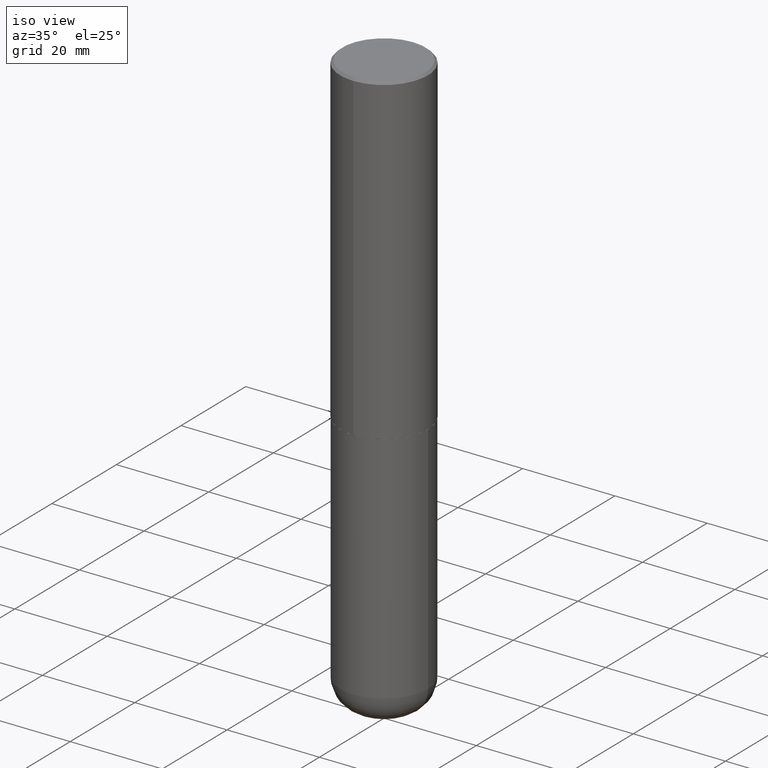
[diagram: clean part render]
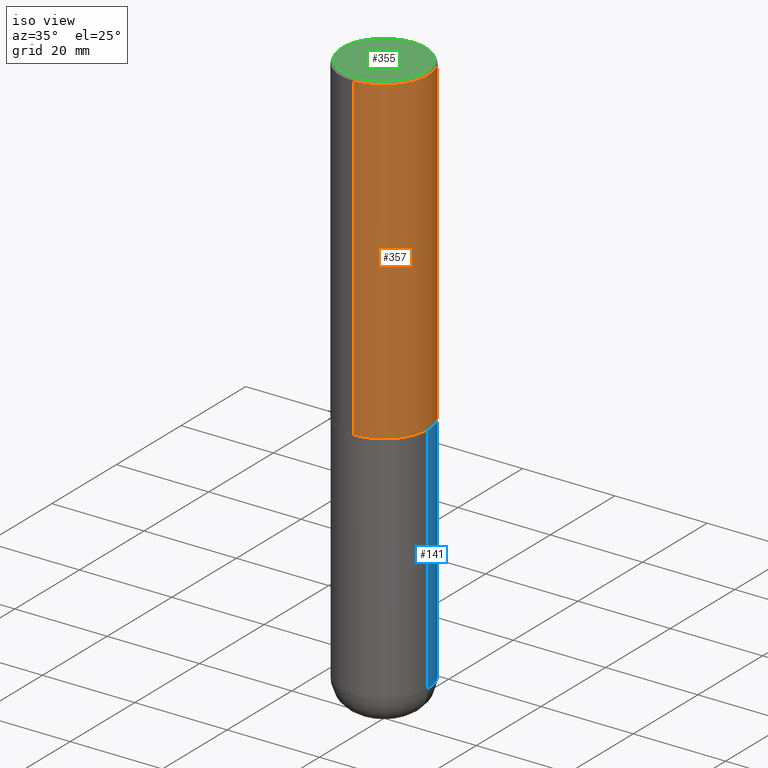
[diagram: same view with three faces highlighted in distinct colors, each labeled with its STEP entity id]
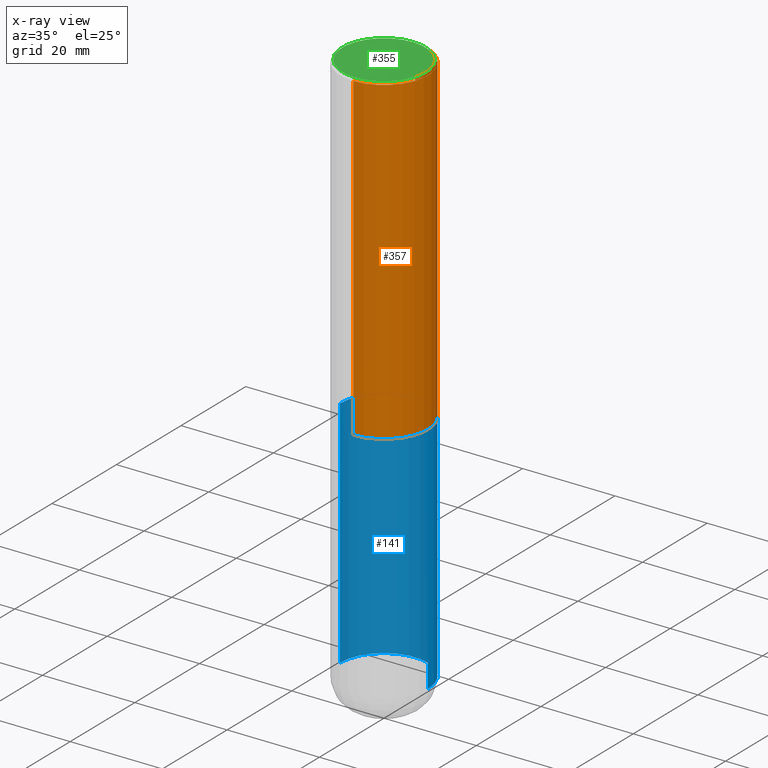
[diagram: x-ray of the same camera — body ghosted, the three highlighted faces saturated]
A machine part, iso view with three faces highlighted in distinct colors.
The next image is the same camera in x-ray (body ghosted, the three faces saturated) — at least one of them is partly hidden behind the body in this view.
Their STEP definitions:

[orange] entity #357 — the highlighted cylindrical surface (partial cylindrical patch) has radius 9.525 mm, axis along (-0, 0, 1).
#33 = LINE ( 'NONE', #178, #373 ) ;
#35 = DIRECTION ( 'NONE',  ( -6.982962677686265922E-15, -1.000000000000000000, 3.494488891895536035E-15 ) ) ;
#44 = EDGE_CURVE ( 'NONE', #65, #246, #60, .T. ) ;
#60 = LINE ( 'NONE', #135, #207 ) ;
#65 = VERTEX_POINT ( 'NONE', #396 ) ;
#66 = CIRCLE ( 'NONE', #336, 0.3750000000000003886 ) ;
#72 = ORIENTED_EDGE ( 'NONE', *, *, #195, .F. ) ;
#77 = CARTESIAN_POINT ( 'NONE',  ( 6.724165036897648492E-29, -9.595832025636787455E-15, -2.749000000000000110 ) ) ;
#81 = EDGE_CURVE ( 'NONE', #301, #114, #33, .T. ) ;
#114 = VERTEX_POINT ( 'NONE', #235 ) ;
#135 = CARTESIAN_POINT ( 'NONE',  ( -2.618611004132351594E-15, -0.3750000000000002220, 1.308998548422625521E-15 ) ) ;
#139 = DIRECTION ( 'NONE',  ( -2.446040391741596606E-29, 3.490662795793665557E-15, 1.000000000000000000 ) ) ;
#144 = CARTESIAN_POINT ( 'NONE',  ( 2.664535259100411196E-15, 0.3749999999999907296, -2.749000000000000998 ) ) ;
#151 = ORIENTED_EDGE ( 'NONE', *, *, #220, .T. ) ;
#154 = ORIENTED_EDGE ( 'NONE', *, *, #44, .F. ) ;
#155 = AXIS2_PLACEMENT_3D ( 'NONE', #255, #196, #245 ) ;
#178 = CARTESIAN_POINT ( 'NONE',  ( 2.664535259100376880E-15, 0.3750000000000002220, -1.308998548422625521E-15 ) ) ;
#195 = EDGE_CURVE ( 'NONE', #246, #114, #382, .T. ) ;
#196 = DIRECTION ( 'NONE',  ( -2.446040391741596606E-29, 3.490662795793665557E-15, 1.000000000000000000 ) ) ;
#207 = VECTOR ( 'NONE', #139, 39.37007874015748143 ) ;
#210 = DIRECTION ( 'NONE',  ( -6.982962677686265922E-15, -1.000000000000000000, 2.913971193241877611E-15 ) ) ;
#220 = EDGE_CURVE ( 'NONE', #65, #301, #66, .T. ) ;
#235 = CARTESIAN_POINT ( 'NONE',  ( 2.618611004132350411E-15, 0.3749999999999999445, -0.02000000000000139513 ) ) ;
#242 = AXIS2_PLACEMENT_3D ( 'NONE', #366, #264, #35 ) ;
#245 = DIRECTION ( 'NONE',  ( -6.982962677686266711E-15, -1.000000000000000000, 3.490662795793665951E-15 ) ) ;
#246 = VERTEX_POINT ( 'NONE', #253 ) ;
#253 = CARTESIAN_POINT ( 'NONE',  ( -2.572686749164323547E-15, -0.3750000000000001110, -0.01999999999999877570 ) ) ;
#255 = CARTESIAN_POINT ( 'NONE',  ( 0.000000000000000000, 0.000000000000000000, 0.000000000000000000 ) ) ;
#264 = DIRECTION ( 'NONE',  ( -2.446040391741596606E-29, 3.490662795793665557E-15, 1.000000000000000000 ) ) ;
#275 = ORIENTED_EDGE ( 'NONE', *, *, #81, .T. ) ;
#293 = DIRECTION ( 'NONE',  ( -2.446040391741596606E-29, 3.490662795793665557E-15, 1.000000000000000000 ) ) ;
#301 = VERTEX_POINT ( 'NONE', #144 ) ;
#318 = FACE_OUTER_BOUND ( 'NONE', #359, .T. ) ;
#336 = AXIS2_PLACEMENT_3D ( 'NONE', #77, #401, #210 ) ;
#357 = ADVANCED_FACE ( 'NONE', ( #318 ), #393, .T. ) ;
#359 = EDGE_LOOP ( 'NONE', ( #151, #275, #72, #154 ) ) ;
#366 = CARTESIAN_POINT ( 'NONE',  ( 4.892080783483214581E-31, -6.981325591587361238E-17, -0.02000000000000008715 ) ) ;
#373 = VECTOR ( 'NONE', #293, 39.37007874015748143 ) ;
#382 = CIRCLE ( 'NONE', #242, 0.3750000000000000555 ) ;
#393 = CYLINDRICAL_SURFACE ( 'NONE', #155, 0.3750000000000002220 ) ;
#396 = CARTESIAN_POINT ( 'NONE',  ( -2.618611004132284935E-15, -0.3750000000000099920, -2.748999999999999222 ) ) ;
#401 = DIRECTION ( 'NONE',  ( -2.446040391741596606E-29, 3.490662795793665557E-15, 1.000000000000000000 ) ) ;

[blue] entity #141 — the highlighted cylindrical surface (partial cylindrical patch) has radius 9.525 mm, axis along (-0, 0, 1).
#1 = LINE ( 'NONE', #71, #305 ) ;
#2 = DIRECTION ( 'NONE',  ( -2.445468806185136877E-29, 3.491481338843145188E-15, 1.000000000000000000 ) ) ;
#3 = CIRCLE ( 'NONE', #383, 0.3750000000000000555 ) ;
#8 = VECTOR ( 'NONE', #2, 39.37007874015748143 ) ;
#15 = ORIENTED_EDGE ( 'NONE', *, *, #281, .T. ) ;
#34 = ORIENTED_EDGE ( 'NONE', *, *, #49, .F. ) ;
#41 = CYLINDRICAL_SURFACE ( 'NONE', #150, 0.3749999999999999445 ) ;
#42 = CARTESIAN_POINT ( 'NONE',  ( 1.161597682937940108E-28, -1.658453635950494339E-14, -4.750000000000000000 ) ) ;
#49 = EDGE_CURVE ( 'NONE', #328, #334, #250, .T. ) ;
#56 = CARTESIAN_POINT ( 'NONE',  ( 0.3750000000000002220, -1.920314736363729341E-14, -4.750000000000000000 ) ) ;
#71 = CARTESIAN_POINT ( 'NONE',  ( -0.3749999999999999445, 2.664535259100375303E-15, -1.844600658845589318E-29 ) ) ;
#84 = FACE_OUTER_BOUND ( 'NONE', #326, .T. ) ;
#85 = CIRCLE ( 'NONE', #324, 0.3749999999999999445 ) ;
#140 = DIRECTION ( 'NONE',  ( -2.445468806185136877E-29, 3.491481338843145188E-15, 1.000000000000000000 ) ) ;
#141 = ADVANCED_FACE ( 'NONE', ( #84 ), #41, .T. ) ;
#150 = AXIS2_PLACEMENT_3D ( 'NONE', #335, #282, #152 ) ;
#152 = DIRECTION ( 'NONE',  ( 1.000000000000000000, -6.982962677686266711E-15, 4.876176775795935793E-29 ) ) ;
#188 = EDGE_CURVE ( 'NONE', #328, #364, #85, .T. ) ;
#215 = DIRECTION ( 'NONE',  ( 1.000000000000000000, -6.982962677686266711E-15, 0.000000000000000000 ) ) ;
#222 = CARTESIAN_POINT ( 'NONE',  ( 0.3750000000000000555, -1.222018468595100145E-14, -2.750000000000000000 ) ) ;
#250 = LINE ( 'NONE', #385, #8 ) ;
#254 = DIRECTION ( 'NONE',  ( -2.445468806185136597E-29, 3.491481338843145583E-15, 1.000000000000000000 ) ) ;
#277 = ORIENTED_EDGE ( 'NONE', *, *, #188, .T. ) ;
#281 = EDGE_CURVE ( 'NONE', #364, #308, #1, .T. ) ;
#282 = DIRECTION ( 'NONE',  ( -2.445468806185136597E-29, 3.491481338843145583E-15, 1.000000000000000000 ) ) ;
#286 = CARTESIAN_POINT ( 'NONE',  ( -0.3750000000000002220, -1.392000110040456296E-14, -4.750000000000000000 ) ) ;
#298 = DIRECTION ( 'NONE',  ( 1.000000000000000000, -6.982962677686269077E-15, 0.000000000000000000 ) ) ;
#305 = VECTOR ( 'NONE', #140, 39.37007874015748143 ) ;
#308 = VERTEX_POINT ( 'NONE', #408 ) ;
#324 = AXIS2_PLACEMENT_3D ( 'NONE', #42, #254, #298 ) ;
#326 = EDGE_LOOP ( 'NONE', ( #277, #15, #412, #34 ) ) ;
#328 = VERTEX_POINT ( 'NONE', #56 ) ;
#334 = VERTEX_POINT ( 'NONE', #222 ) ;
#335 = CARTESIAN_POINT ( 'NONE',  ( 0.000000000000000000, 0.000000000000000000, 0.000000000000000000 ) ) ;
#364 = VERTEX_POINT ( 'NONE', #286 ) ;
#383 = AXIS2_PLACEMENT_3D ( 'NONE', #414, #410, #215 ) ;
#385 = CARTESIAN_POINT ( 'NONE',  ( 0.3749999999999999445, -2.618611004132349622E-15, 1.828566290923475642E-29 ) ) ;
#387 = EDGE_CURVE ( 'NONE', #334, #308, #3, .T. ) ;
#408 = CARTESIAN_POINT ( 'NONE',  ( -0.3750000000000000555, -1.042851976156142014E-14, -2.750000000000000000 ) ) ;
#410 = DIRECTION ( 'NONE',  ( -2.445468806185136597E-29, 3.491481338843145583E-15, 1.000000000000000000 ) ) ;
#412 = ORIENTED_EDGE ( 'NONE', *, *, #387, .F. ) ;
#414 = CARTESIAN_POINT ( 'NONE',  ( 6.725039217009124520E-29, -9.601573681818649859E-15, -2.750000000000000000 ) ) ;

[green] entity #355 — the highlighted planar face has unit normal (0, -0, -1).
#7 = EDGE_CURVE ( 'NONE', #157, #76, #164, .T. ) ;
#9 = CARTESIAN_POINT ( 'NONE',  ( -2.504081769186608216E-15, -0.3549999999999999822, 1.285848347115290366E-15 ) ) ;
#21 = CARTESIAN_POINT ( 'NONE',  ( 2.478951750578624209E-15, 0.3549999999999999822, -1.215853765202481601E-15 ) ) ;
#22 = DIRECTION ( 'NONE',  ( 6.982962677686265922E-15, 1.000000000000000000, -3.490662795793665557E-15 ) ) ;
#76 = VERTEX_POINT ( 'NONE', #131 ) ;
#91 = PLANE ( 'NONE',  #354 ) ;
#121 = ORIENTED_EDGE ( 'NONE', *, *, #7, .T. ) ;
#124 = CARTESIAN_POINT ( 'NONE',  ( -1.141397163745304909E-45, 1.628849886601155835E-31, 4.666305460853910467E-17 ) ) ;
#131 = CARTESIAN_POINT ( 'NONE',  ( 2.548781377355487113E-15, 0.3549999999999999822, -1.192522237898212341E-15 ) ) ;
#157 = VERTEX_POINT ( 'NONE', #9 ) ;
#164 = CIRCLE ( 'NONE', #256, 0.3549999999999999822 ) ;
#171 = EDGE_CURVE ( 'NONE', #76, #157, #269, .T. ) ;
#172 = DIRECTION ( 'NONE',  ( -2.446040391741596606E-29, 3.490662795793665557E-15, 1.000000000000000000 ) ) ;
#193 = FACE_OUTER_BOUND ( 'NONE', #213, .T. ) ;
#213 = EDGE_LOOP ( 'NONE', ( #380, #121 ) ) ;
#232 = DIRECTION ( 'NONE',  ( -2.446040391741596606E-29, 3.490662795793665557E-15, 1.000000000000000000 ) ) ;
#248 = DIRECTION ( 'NONE',  ( 2.446040391741596045E-29, -3.490662795793665557E-15, -1.000000000000000000 ) ) ;
#256 = AXIS2_PLACEMENT_3D ( 'NONE', #291, #172, #388 ) ;
#269 = CIRCLE ( 'NONE', #391, 0.3549999999999999822 ) ;
#291 = CARTESIAN_POINT ( 'NONE',  ( -1.141397163745304909E-45, 1.628849886601155835E-31, 4.666305460853910467E-17 ) ) ;
#339 = DIRECTION ( 'NONE',  ( -6.982962677686265922E-15, -1.000000000000000000, 3.490662795793665557E-15 ) ) ;
#354 = AXIS2_PLACEMENT_3D ( 'NONE', #21, #248, #22 ) ;
#355 = ADVANCED_FACE ( 'NONE', ( #193 ), #91, .F. ) ;
#380 = ORIENTED_EDGE ( 'NONE', *, *, #171, .T. ) ;
#388 = DIRECTION ( 'NONE',  ( -6.982962677686265922E-15, -1.000000000000000000, 3.490662795793665557E-15 ) ) ;
#391 = AXIS2_PLACEMENT_3D ( 'NONE', #124, #232, #339 ) ;